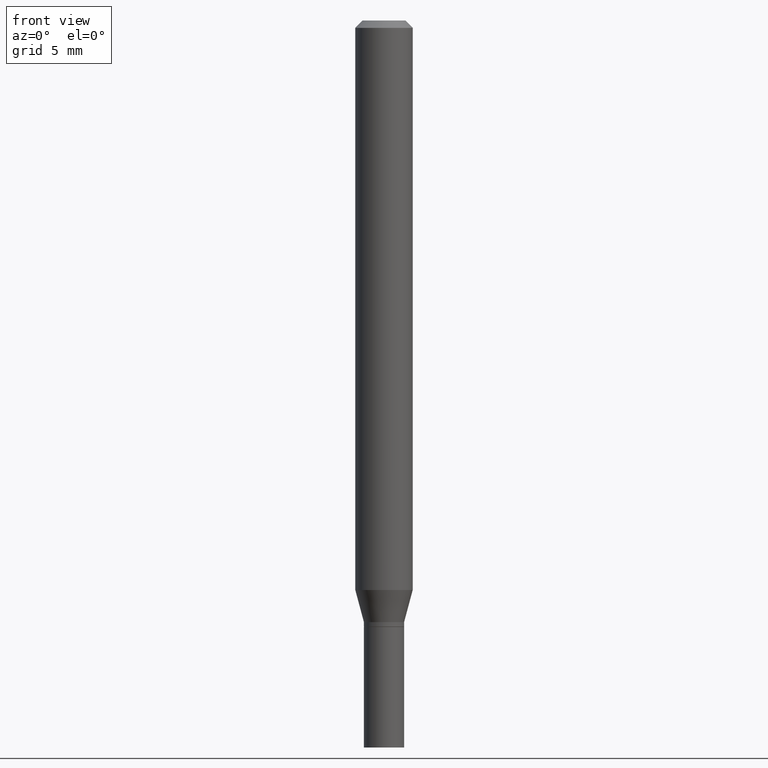
[diagram: clean part render]
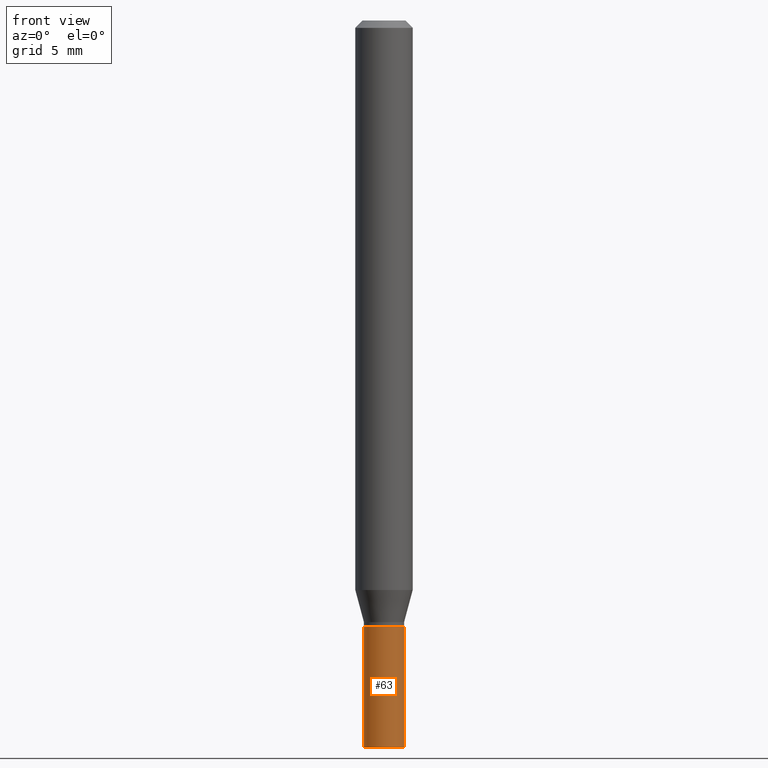
[diagram: same view with one face highlighted and labeled with its STEP entity id]
A machine part, front view. The second image highlights one B-rep face of the part: STEP entity #63.
In plain terms, the highlighted cylindrical surface (edge-blend (fillet) strip) has radius 1.0503 mm, axis along (-0, 0, 1).
Its self-contained STEP definition (entity closure, byte-faithful):
#8 = DIRECTION ( 'NONE',  ( -2.445468806185136597E-29, 3.491481338843145583E-15, 1.000000000000000000 ) ) ;
#17 = DIRECTION ( 'NONE',  ( -2.445468806185136877E-29, 3.491481338843145188E-15, 1.000000000000000000 ) ) ;
#23 = DIRECTION ( 'NONE',  ( -2.445468806185136877E-29, 3.491481338843145188E-15, 1.000000000000000000 ) ) ;
#63 = ADVANCED_FACE ( 'NONE', ( #176 ), #417, .T. ) ;
#99 = CARTESIAN_POINT ( 'NONE',  ( 0.000000000000000000, 0.000000000000000000, 0.000000000000000000 ) ) ;
#111 = CARTESIAN_POINT ( 'NONE',  ( -0.04134999999999999787, -4.496852123789878797E-15, -1.496099999999999985 ) ) ;
#117 = CARTESIAN_POINT ( 'NONE',  ( 3.052189616999668885E-29, -4.357717859010129969E-15, -1.248099999999999987 ) ) ;
#128 = CARTESIAN_POINT ( 'NONE',  ( -0.04134999999999999787, -4.496852123789878797E-15, -1.248099999999999987 ) ) ;
#131 = VECTOR ( 'NONE', #17, 39.37007874015748143 ) ;
#160 = ORIENTED_EDGE ( 'NONE', *, *, #191, .F. ) ;
#162 = VERTEX_POINT ( 'NONE', #261 ) ;
#170 = DIRECTION ( 'NONE',  ( -2.445468806185136597E-29, 3.491481338843145583E-15, 1.000000000000000000 ) ) ;
#173 = CIRCLE ( 'NONE', #307, 0.04134999999999999787 ) ;
#176 = FACE_OUTER_BOUND ( 'NONE', #211, .T. ) ;
#191 = EDGE_CURVE ( 'NONE', #239, #374, #173, .T. ) ;
#201 = VERTEX_POINT ( 'NONE', #111 ) ;
#211 = EDGE_LOOP ( 'NONE', ( #391, #282, #415, #160 ) ) ;
#212 = AXIS2_PLACEMENT_3D ( 'NONE', #99, #170, #312 ) ;
#213 = AXIS2_PLACEMENT_3D ( 'NONE', #229, #451, #371 ) ;
#229 = CARTESIAN_POINT ( 'NONE',  ( 3.658665880933582389E-29, -5.223605231043229660E-15, -1.496099999999999985 ) ) ;
#239 = VERTEX_POINT ( 'NONE', #128 ) ;
#261 = CARTESIAN_POINT ( 'NONE',  ( 0.04134999999999999787, -5.512350737765556605E-15, -1.496099999999999985 ) ) ;
#273 = CARTESIAN_POINT ( 'NONE',  ( 0.04134999999999999787, -4.646463365732457703E-15, -1.248099999999999987 ) ) ;
#282 = ORIENTED_EDGE ( 'NONE', *, *, #373, .T. ) ;
#294 = VECTOR ( 'NONE', #23, 39.37007874015748143 ) ;
#307 = AXIS2_PLACEMENT_3D ( 'NONE', #117, #8, #324 ) ;
#312 = DIRECTION ( 'NONE',  ( 1.000000000000000000, -6.982962677686267499E-15, 4.876176775795936353E-29 ) ) ;
#324 = DIRECTION ( 'NONE',  ( 1.000000000000000000, -6.982962677686273021E-15, 0.000000000000000000 ) ) ;
#340 = LINE ( 'NONE', #404, #131 ) ;
#348 = CARTESIAN_POINT ( 'NONE',  ( 0.04134999999999999787, -2.887455067223271427E-16, 2.016299096791619635E-30 ) ) ;
#351 = EDGE_CURVE ( 'NONE', #201, #239, #340, .T. ) ;
#364 = CIRCLE ( 'NONE', #213, 0.04134999999999999787 ) ;
#371 = DIRECTION ( 'NONE',  ( 1.000000000000000000, -6.982962677686273021E-15, 0.000000000000000000 ) ) ;
#373 = EDGE_CURVE ( 'NONE', #201, #162, #364, .T. ) ;
#374 = VERTEX_POINT ( 'NONE', #273 ) ;
#391 = ORIENTED_EDGE ( 'NONE', *, *, #351, .F. ) ;
#404 = CARTESIAN_POINT ( 'NONE',  ( -0.04134999999999999787, 2.938094212368014117E-16, -2.033979659820403452E-30 ) ) ;
#415 = ORIENTED_EDGE ( 'NONE', *, *, #447, .T. ) ;
#417 = CYLINDRICAL_SURFACE ( 'NONE', #212, 0.04134999999999999787 ) ;
#447 = EDGE_CURVE ( 'NONE', #162, #374, #457, .T. ) ;
#451 = DIRECTION ( 'NONE',  ( -2.445468806185136597E-29, 3.491481338843145583E-15, 1.000000000000000000 ) ) ;
#457 = LINE ( 'NONE', #348, #294 ) ;